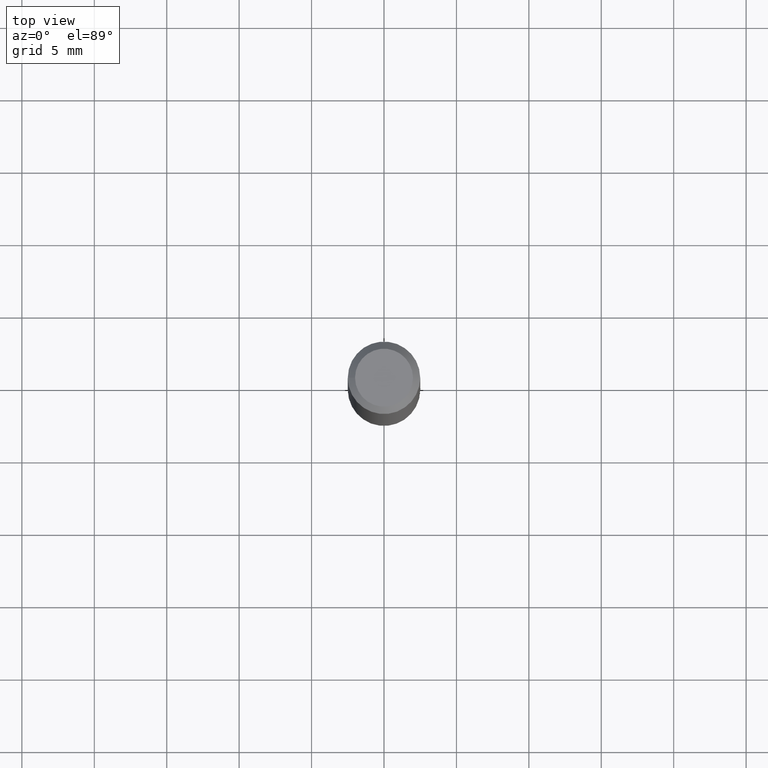
[diagram: clean part render]
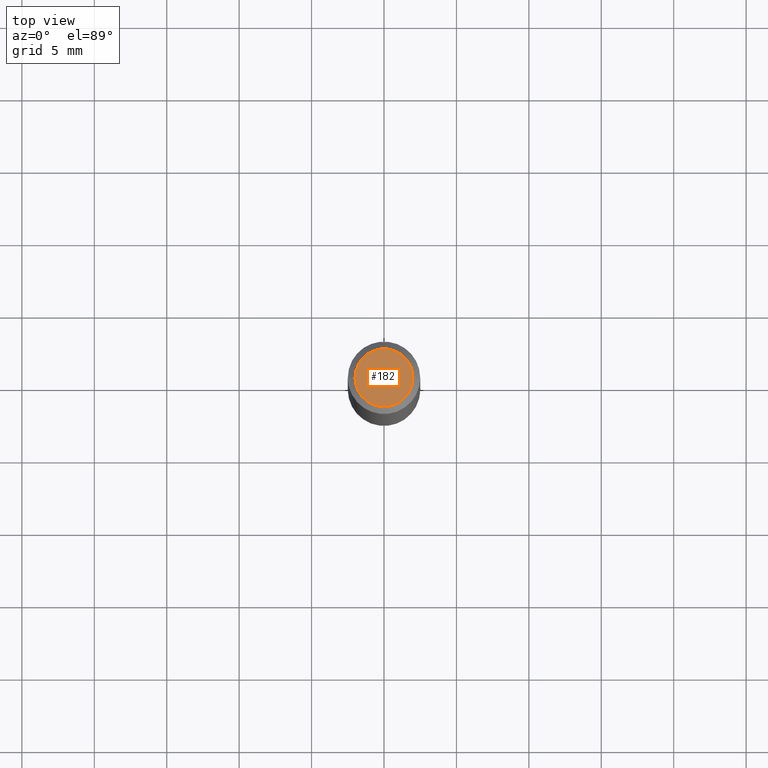
[diagram: same view with one face highlighted and labeled with its STEP entity id]
A machine part, top view. The second image highlights one B-rep face of the part: STEP entity #182.
In plain terms, the highlighted planar face has unit normal (-0, 0, -1).
Its self-contained STEP definition (entity closure, byte-faithful):
#5 = CARTESIAN_POINT ( 'NONE',  ( 0.0000000000000000000, 0.0000000000000000000, 0.0000000000000000000 ) ) ;
#30 = CARTESIAN_POINT ( 'NONE',  ( -8.401226687859025458E-31, 0.0000000000000000000, -1.203103478514178000E-16 ) ) ;
#32 = AXIS2_PLACEMENT_3D ( 'NONE', #30, #54, #176 ) ;
#43 = VERTEX_POINT ( 'NONE', #110 ) ;
#54 = DIRECTION ( 'NONE',  ( -6.982962677686266711E-15, 0.0000000000000000000, -1.000000000000000000 ) ) ;
#65 = EDGE_CURVE ( 'NONE', #43, #43, #69, .T. ) ;
#69 = CIRCLE ( 'NONE', #150, 1.999999999999999112 ) ;
#73 = FACE_OUTER_BOUND ( 'NONE', #109, .T. ) ;
#84 = ORIENTED_EDGE ( 'NONE', *, *, #65, .F. ) ;
#109 = EDGE_LOOP ( 'NONE', ( #84 ) ) ;
#110 = CARTESIAN_POINT ( 'NONE',  ( -1.999999999999999112, 0.0000000000000000000, 1.396592535537252711E-14 ) ) ;
#130 = PLANE ( 'NONE',  #32 ) ;
#133 = DIRECTION ( 'NONE',  ( -6.982962677686266711E-15, 0.0000000000000000000, -1.000000000000000000 ) ) ;
#150 = AXIS2_PLACEMENT_3D ( 'NONE', #5, #133, #173 ) ;
#173 = DIRECTION ( 'NONE',  ( -1.000000000000000000, 0.0000000000000000000, 6.982962677686266711E-15 ) ) ;
#176 = DIRECTION ( 'NONE',  ( -1.000000000000000000, 0.0000000000000000000, 6.982962677686266711E-15 ) ) ;
#182 = ADVANCED_FACE ( 'NONE', ( #73 ), #130, .F. ) ;